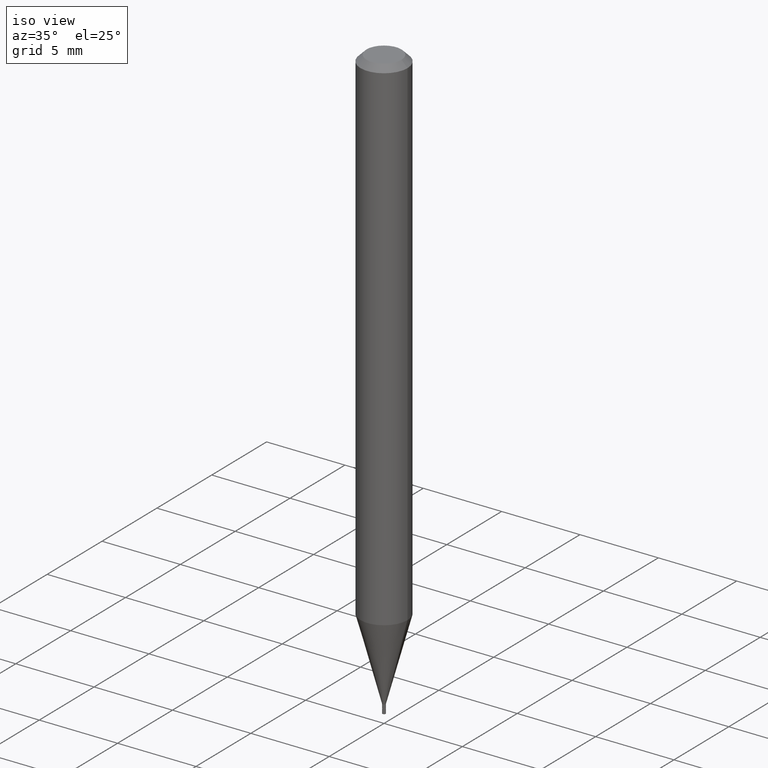
[diagram: clean part render]
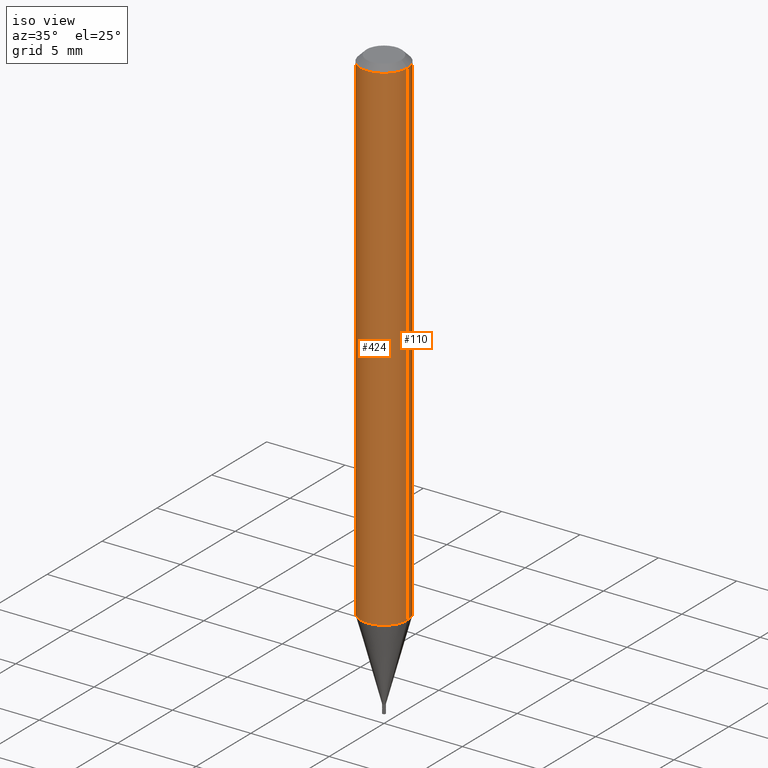
[diagram: same view with one multi-face feature highlighted, each face labeled with its STEP entity id]
A machine part, iso view. The highlighted faces form ONE feature: a constant-radius fillet chain: 2 tangent blend faces with common blend radius 1.4999 mm. The faces share edges in the B-rep.
Their STEP definitions:
[1] entity #110 (Cylinder):
#11 = CARTESIAN_POINT ( 'NONE',  ( 0.05904999999999999832, -4.841162332867759001E-15, -1.268464000502953493 ) ) ;
#12 = EDGE_LOOP ( 'NONE', ( #151, #57, #171, #96 ) ) ;
#46 = CARTESIAN_POINT ( 'NONE',  ( 3.101989144998780290E-29, -4.428818386750384870E-15, -1.268464000502953493 ) ) ;
#53 = CIRCLE ( 'NONE', #410, 0.05904999999999999832 ) ;
#57 = ORIENTED_EDGE ( 'NONE', *, *, #389, .T. ) ;
#60 = VERTEX_POINT ( 'NONE', #105 ) ;
#78 = DIRECTION ( 'NONE',  ( -2.445468806185136597E-29, 3.491481338843145583E-15, 1.000000000000000000 ) ) ;
#80 = EDGE_CURVE ( 'NONE', #248, #283, #450, .T. ) ;
#83 = FACE_OUTER_BOUND ( 'NONE', #12, .T. ) ;
#88 = VECTOR ( 'NONE', #371, 39.37007874015748143 ) ;
#90 = DIRECTION ( 'NONE',  ( -2.445468806185136877E-29, 3.491481338843145188E-15, 1.000000000000000000 ) ) ;
#96 = ORIENTED_EDGE ( 'NONE', *, *, #262, .F. ) ;
#103 = DIRECTION ( 'NONE',  ( -2.445468806185136597E-29, 3.491481338843145583E-15, 1.000000000000000000 ) ) ;
#105 = CARTESIAN_POINT ( 'NONE',  ( 0.05904999999999999832, -4.647161662000212105E-16, -0.01499999999999999944 ) ) ;
#110 = ADVANCED_FACE ( 'NONE', ( #83 ), #220, .T. ) ;
#122 = CARTESIAN_POINT ( 'NONE',  ( -0.05904999999999999832, 4.195754854663391478E-16, -2.904631170795521892E-30 ) ) ;
#151 = ORIENTED_EDGE ( 'NONE', *, *, #80, .T. ) ;
#171 = ORIENTED_EDGE ( 'NONE', *, *, #244, .F. ) ;
#199 = VERTEX_POINT ( 'NONE', #375 ) ;
#210 = DIRECTION ( 'NONE',  ( 1.000000000000000000, -6.982962677686273021E-15, 0.000000000000000000 ) ) ;
#220 = CYLINDRICAL_SURFACE ( 'NONE', #435, 0.05904999999999999832 ) ;
#244 = EDGE_CURVE ( 'NONE', #60, #199, #53, .T. ) ;
#248 = VERTEX_POINT ( 'NONE', #11 ) ;
#262 = EDGE_CURVE ( 'NONE', #248, #60, #339, .T. ) ;
#283 = VERTEX_POINT ( 'NONE', #294 ) ;
#289 = CARTESIAN_POINT ( 'NONE',  ( 0.000000000000000000, 0.000000000000000000, 0.000000000000000000 ) ) ;
#294 = CARTESIAN_POINT ( 'NONE',  ( -0.05904999999999999832, -4.009242901284044588E-15, -1.268464000502953493 ) ) ;
#328 = AXIS2_PLACEMENT_3D ( 'NONE', #46, #331, #210 ) ;
#329 = VECTOR ( 'NONE', #90, 39.37007874015748143 ) ;
#331 = DIRECTION ( 'NONE',  ( -2.445468806185136597E-29, 3.491481338843145583E-15, 1.000000000000000000 ) ) ;
#339 = LINE ( 'NONE', #449, #88 ) ;
#355 = DIRECTION ( 'NONE',  ( 1.000000000000000000, -6.982962677686266711E-15, 4.876176775795936353E-29 ) ) ;
#371 = DIRECTION ( 'NONE',  ( -2.445468806185136877E-29, 3.491481338843145188E-15, 1.000000000000000000 ) ) ;
#375 = CARTESIAN_POINT ( 'NONE',  ( -0.05904999999999999832, -1.821019817950176679E-15, -0.01499999999999999944 ) ) ;
#389 = EDGE_CURVE ( 'NONE', #283, #199, #411, .T. ) ;
#408 = DIRECTION ( 'NONE',  ( 1.000000000000000000, -6.982962677686266711E-15, 0.000000000000000000 ) ) ;
#410 = AXIS2_PLACEMENT_3D ( 'NONE', #443, #78, #408 ) ;
#411 = LINE ( 'NONE', #122, #329 ) ;
#435 = AXIS2_PLACEMENT_3D ( 'NONE', #289, #103, #355 ) ;
#443 = CARTESIAN_POINT ( 'NONE',  ( 3.668203209277705088E-31, -5.237222008264718399E-17, -0.01499999999999999944 ) ) ;
#449 = CARTESIAN_POINT ( 'NONE',  ( 0.05904999999999999832, -4.123439461173740327E-16, 2.879382386107500220E-30 ) ) ;
#450 = CIRCLE ( 'NONE', #328, 0.05904999999999999832 ) ;
[2] entity #424 (Cylinder):
#6 = DIRECTION ( 'NONE',  ( -2.445468806185136597E-29, 3.491481338843145583E-15, 1.000000000000000000 ) ) ;
#8 = AXIS2_PLACEMENT_3D ( 'NONE', #439, #111, #260 ) ;
#10 = ORIENTED_EDGE ( 'NONE', *, *, #262, .T. ) ;
#11 = CARTESIAN_POINT ( 'NONE',  ( 0.05904999999999999832, -4.841162332867759001E-15, -1.268464000502953493 ) ) ;
#17 = AXIS2_PLACEMENT_3D ( 'NONE', #395, #287, #170 ) ;
#32 = DIRECTION ( 'NONE',  ( 1.000000000000000000, -6.982962677686266711E-15, 4.876176775795936353E-29 ) ) ;
#41 = ORIENTED_EDGE ( 'NONE', *, *, #389, .F. ) ;
#60 = VERTEX_POINT ( 'NONE', #105 ) ;
#77 = CYLINDRICAL_SURFACE ( 'NONE', #451, 0.05904999999999999832 ) ;
#88 = VECTOR ( 'NONE', #371, 39.37007874015748143 ) ;
#90 = DIRECTION ( 'NONE',  ( -2.445468806185136877E-29, 3.491481338843145188E-15, 1.000000000000000000 ) ) ;
#105 = CARTESIAN_POINT ( 'NONE',  ( 0.05904999999999999832, -4.647161662000212105E-16, -0.01499999999999999944 ) ) ;
#111 = DIRECTION ( 'NONE',  ( -2.445468806185136597E-29, 3.491481338843145583E-15, 1.000000000000000000 ) ) ;
#122 = CARTESIAN_POINT ( 'NONE',  ( -0.05904999999999999832, 4.195754854663391478E-16, -2.904631170795521892E-30 ) ) ;
#170 = DIRECTION ( 'NONE',  ( 1.000000000000000000, -6.982962677686266711E-15, 0.000000000000000000 ) ) ;
#196 = CIRCLE ( 'NONE', #17, 0.05904999999999999832 ) ;
#199 = VERTEX_POINT ( 'NONE', #375 ) ;
#200 = ORIENTED_EDGE ( 'NONE', *, *, #295, .T. ) ;
#248 = VERTEX_POINT ( 'NONE', #11 ) ;
#260 = DIRECTION ( 'NONE',  ( 1.000000000000000000, -6.982962677686273021E-15, 0.000000000000000000 ) ) ;
#262 = EDGE_CURVE ( 'NONE', #248, #60, #339, .T. ) ;
#283 = VERTEX_POINT ( 'NONE', #294 ) ;
#287 = DIRECTION ( 'NONE',  ( -2.445468806185136597E-29, 3.491481338843145583E-15, 1.000000000000000000 ) ) ;
#294 = CARTESIAN_POINT ( 'NONE',  ( -0.05904999999999999832, -4.009242901284044588E-15, -1.268464000502953493 ) ) ;
#295 = EDGE_CURVE ( 'NONE', #283, #248, #393, .T. ) ;
#329 = VECTOR ( 'NONE', #90, 39.37007874015748143 ) ;
#339 = LINE ( 'NONE', #449, #88 ) ;
#367 = EDGE_LOOP ( 'NONE', ( #41, #200, #10, #391 ) ) ;
#371 = DIRECTION ( 'NONE',  ( -2.445468806185136877E-29, 3.491481338843145188E-15, 1.000000000000000000 ) ) ;
#375 = CARTESIAN_POINT ( 'NONE',  ( -0.05904999999999999832, -1.821019817950176679E-15, -0.01499999999999999944 ) ) ;
#389 = EDGE_CURVE ( 'NONE', #283, #199, #411, .T. ) ;
#391 = ORIENTED_EDGE ( 'NONE', *, *, #442, .F. ) ;
#392 = CARTESIAN_POINT ( 'NONE',  ( 0.000000000000000000, 0.000000000000000000, 0.000000000000000000 ) ) ;
#393 = CIRCLE ( 'NONE', #8, 0.05904999999999999832 ) ;
#395 = CARTESIAN_POINT ( 'NONE',  ( 3.668203209277705088E-31, -5.237222008264718399E-17, -0.01499999999999999944 ) ) ;
#411 = LINE ( 'NONE', #122, #329 ) ;
#424 = ADVANCED_FACE ( 'NONE', ( #427 ), #77, .T. ) ;
#427 = FACE_OUTER_BOUND ( 'NONE', #367, .T. ) ;
#439 = CARTESIAN_POINT ( 'NONE',  ( 3.101989144998780290E-29, -4.428818386750384870E-15, -1.268464000502953493 ) ) ;
#442 = EDGE_CURVE ( 'NONE', #199, #60, #196, .T. ) ;
#449 = CARTESIAN_POINT ( 'NONE',  ( 0.05904999999999999832, -4.123439461173740327E-16, 2.879382386107500220E-30 ) ) ;
#451 = AXIS2_PLACEMENT_3D ( 'NONE', #392, #6, #32 ) ;